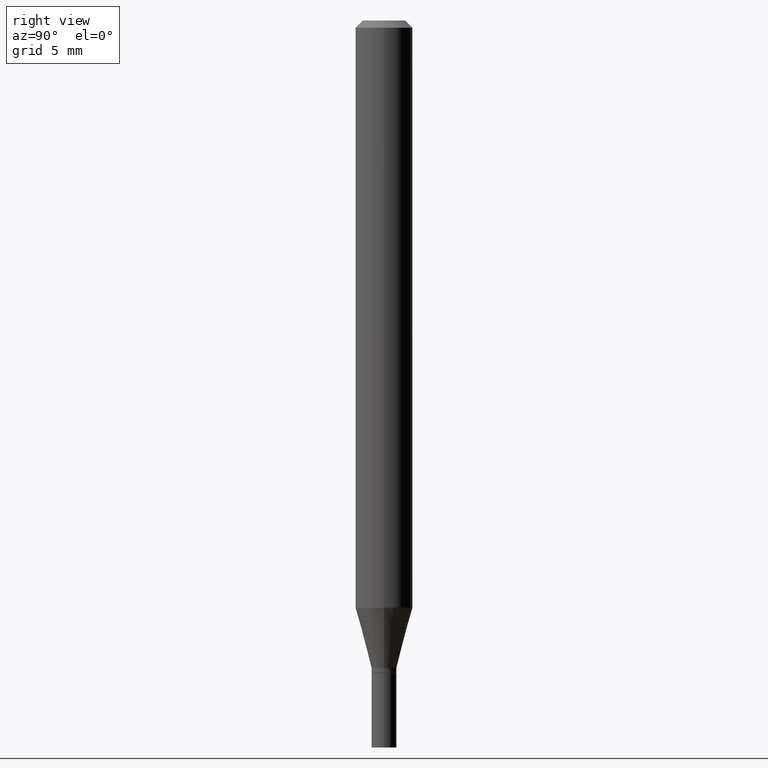
[diagram: clean part render]
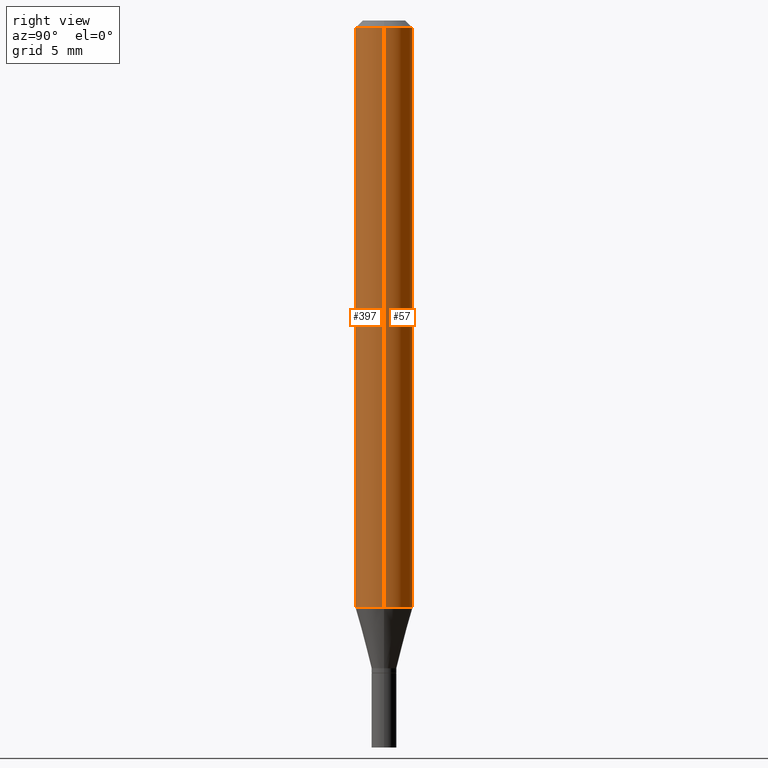
[diagram: same view with one multi-face feature highlighted, each face labeled with its STEP entity id]
A machine part, right view. The highlighted faces form ONE feature: a constant-radius fillet chain: 2 tangent blend faces with common blend radius 1.4999 mm. The faces share edges in the B-rep.
Their STEP definitions:
[1] entity #57 (Cylinder):
#26 = EDGE_CURVE ( 'NONE', #319, #460, #316, .T. ) ;
#40 = VERTEX_POINT ( 'NONE', #153 ) ;
#47 = ORIENTED_EDGE ( 'NONE', *, *, #73, .T. ) ;
#57 = ADVANCED_FACE ( 'NONE', ( #429 ), #254, .T. ) ;
#62 = CARTESIAN_POINT ( 'NONE',  ( -0.05904999999999999832, -1.721859827584131788E-15, -0.01499999999999999944 ) ) ;
#73 = EDGE_CURVE ( 'NONE', #460, #84, #466, .T. ) ;
#81 = DIRECTION ( 'NONE',  ( -2.445468806185136597E-29, 3.491481338843145583E-15, 1.000000000000000000 ) ) ;
#84 = VERTEX_POINT ( 'NONE', #62 ) ;
#95 = DIRECTION ( 'NONE',  ( 1.000000000000000000, -6.982962677686266711E-15, 0.000000000000000000 ) ) ;
#116 = CARTESIAN_POINT ( 'NONE',  ( -0.05904999999999999832, -3.810922920551955991E-15, -1.211662900486820904 ) ) ;
#121 = CARTESIAN_POINT ( 'NONE',  ( 2.963083826752325828E-29, -4.230498406018294695E-15, -1.211662900486820904 ) ) ;
#126 = VECTOR ( 'NONE', #321, 39.37007874015748143 ) ;
#131 = DIRECTION ( 'NONE',  ( -2.445468806185136597E-29, 3.491481338843145583E-15, 1.000000000000000000 ) ) ;
#153 = CARTESIAN_POINT ( 'NONE',  ( 0.05904999999999999832, -4.647161662000212105E-16, -0.01499999999999999944 ) ) ;
#165 = CARTESIAN_POINT ( 'NONE',  ( -0.05904999999999999832, 4.195754854663391478E-16, -2.904631170795521892E-30 ) ) ;
#179 = AXIS2_PLACEMENT_3D ( 'NONE', #121, #224, #297 ) ;
#220 = ORIENTED_EDGE ( 'NONE', *, *, #246, .F. ) ;
#224 = DIRECTION ( 'NONE',  ( -2.445468806185136597E-29, 3.491481338843145583E-15, 1.000000000000000000 ) ) ;
#225 = DIRECTION ( 'NONE',  ( 1.000000000000000000, -6.982962677686266711E-15, 4.876176775795936353E-29 ) ) ;
#235 = AXIS2_PLACEMENT_3D ( 'NONE', #294, #81, #225 ) ;
#246 = EDGE_CURVE ( 'NONE', #40, #84, #295, .T. ) ;
#254 = CYLINDRICAL_SURFACE ( 'NONE', #235, 0.05904999999999999832 ) ;
#291 = ORIENTED_EDGE ( 'NONE', *, *, #26, .T. ) ;
#294 = CARTESIAN_POINT ( 'NONE',  ( 0.000000000000000000, 0.000000000000000000, 0.000000000000000000 ) ) ;
#295 = CIRCLE ( 'NONE', #417, 0.05904999999999999832 ) ;
#297 = DIRECTION ( 'NONE',  ( 1.000000000000000000, -6.982962677686273021E-15, 0.000000000000000000 ) ) ;
#303 = DIRECTION ( 'NONE',  ( -2.445468806185136877E-29, 3.491481338843145188E-15, 1.000000000000000000 ) ) ;
#316 = CIRCLE ( 'NONE', #179, 0.05904999999999999832 ) ;
#319 = VERTEX_POINT ( 'NONE', #385 ) ;
#321 = DIRECTION ( 'NONE',  ( -2.445468806185136877E-29, 3.491481338843145188E-15, 1.000000000000000000 ) ) ;
#323 = LINE ( 'NONE', #422, #126 ) ;
#385 = CARTESIAN_POINT ( 'NONE',  ( 0.05904999999999999832, -4.642842352135668037E-15, -1.211662900486820904 ) ) ;
#398 = ORIENTED_EDGE ( 'NONE', *, *, #406, .F. ) ;
#406 = EDGE_CURVE ( 'NONE', #319, #40, #323, .T. ) ;
#412 = CARTESIAN_POINT ( 'NONE',  ( 3.668203209277705088E-31, -5.237222008264718399E-17, -0.01499999999999999944 ) ) ;
#417 = AXIS2_PLACEMENT_3D ( 'NONE', #412, #131, #95 ) ;
#422 = CARTESIAN_POINT ( 'NONE',  ( 0.05904999999999999832, -4.123439461173740327E-16, 2.879382386107500220E-30 ) ) ;
#429 = FACE_OUTER_BOUND ( 'NONE', #436, .T. ) ;
#436 = EDGE_LOOP ( 'NONE', ( #291, #47, #220, #398 ) ) ;
#446 = VECTOR ( 'NONE', #303, 39.37007874015748143 ) ;
#460 = VERTEX_POINT ( 'NONE', #116 ) ;
#466 = LINE ( 'NONE', #165, #446 ) ;
[2] entity #397 (Cylinder):
#7 = CIRCLE ( 'NONE', #172, 0.05904999999999999832 ) ;
#34 = CARTESIAN_POINT ( 'NONE',  ( 0.000000000000000000, 0.000000000000000000, 0.000000000000000000 ) ) ;
#35 = CIRCLE ( 'NONE', #214, 0.05904999999999999832 ) ;
#40 = VERTEX_POINT ( 'NONE', #153 ) ;
#53 = EDGE_CURVE ( 'NONE', #84, #40, #7, .T. ) ;
#62 = CARTESIAN_POINT ( 'NONE',  ( -0.05904999999999999832, -1.721859827584131788E-15, -0.01499999999999999944 ) ) ;
#73 = EDGE_CURVE ( 'NONE', #460, #84, #466, .T. ) ;
#84 = VERTEX_POINT ( 'NONE', #62 ) ;
#109 = DIRECTION ( 'NONE',  ( 1.000000000000000000, -6.982962677686266711E-15, 4.876176775795936353E-29 ) ) ;
#116 = CARTESIAN_POINT ( 'NONE',  ( -0.05904999999999999832, -3.810922920551955991E-15, -1.211662900486820904 ) ) ;
#126 = VECTOR ( 'NONE', #321, 39.37007874015748143 ) ;
#138 = CARTESIAN_POINT ( 'NONE',  ( 2.963083826752325828E-29, -4.230498406018294695E-15, -1.211662900486820904 ) ) ;
#146 = ORIENTED_EDGE ( 'NONE', *, *, #406, .T. ) ;
#153 = CARTESIAN_POINT ( 'NONE',  ( 0.05904999999999999832, -4.647161662000212105E-16, -0.01499999999999999944 ) ) ;
#155 = EDGE_LOOP ( 'NONE', ( #186, #243, #146, #201 ) ) ;
#165 = CARTESIAN_POINT ( 'NONE',  ( -0.05904999999999999832, 4.195754854663391478E-16, -2.904631170795521892E-30 ) ) ;
#172 = AXIS2_PLACEMENT_3D ( 'NONE', #228, #290, #327 ) ;
#181 = DIRECTION ( 'NONE',  ( -2.445468806185136597E-29, 3.491481338843145583E-15, 1.000000000000000000 ) ) ;
#186 = ORIENTED_EDGE ( 'NONE', *, *, #73, .F. ) ;
#201 = ORIENTED_EDGE ( 'NONE', *, *, #53, .F. ) ;
#205 = DIRECTION ( 'NONE',  ( 1.000000000000000000, -6.982962677686273021E-15, 0.000000000000000000 ) ) ;
#213 = FACE_OUTER_BOUND ( 'NONE', #155, .T. ) ;
#214 = AXIS2_PLACEMENT_3D ( 'NONE', #138, #462, #205 ) ;
#228 = CARTESIAN_POINT ( 'NONE',  ( 3.668203209277705088E-31, -5.237222008264718399E-17, -0.01499999999999999944 ) ) ;
#243 = ORIENTED_EDGE ( 'NONE', *, *, #309, .T. ) ;
#290 = DIRECTION ( 'NONE',  ( -2.445468806185136597E-29, 3.491481338843145583E-15, 1.000000000000000000 ) ) ;
#303 = DIRECTION ( 'NONE',  ( -2.445468806185136877E-29, 3.491481338843145188E-15, 1.000000000000000000 ) ) ;
#309 = EDGE_CURVE ( 'NONE', #460, #319, #35, .T. ) ;
#319 = VERTEX_POINT ( 'NONE', #385 ) ;
#321 = DIRECTION ( 'NONE',  ( -2.445468806185136877E-29, 3.491481338843145188E-15, 1.000000000000000000 ) ) ;
#323 = LINE ( 'NONE', #422, #126 ) ;
#327 = DIRECTION ( 'NONE',  ( 1.000000000000000000, -6.982962677686266711E-15, 0.000000000000000000 ) ) ;
#355 = CYLINDRICAL_SURFACE ( 'NONE', #396, 0.05904999999999999832 ) ;
#385 = CARTESIAN_POINT ( 'NONE',  ( 0.05904999999999999832, -4.642842352135668037E-15, -1.211662900486820904 ) ) ;
#396 = AXIS2_PLACEMENT_3D ( 'NONE', #34, #181, #109 ) ;
#397 = ADVANCED_FACE ( 'NONE', ( #213 ), #355, .T. ) ;
#406 = EDGE_CURVE ( 'NONE', #319, #40, #323, .T. ) ;
#422 = CARTESIAN_POINT ( 'NONE',  ( 0.05904999999999999832, -4.123439461173740327E-16, 2.879382386107500220E-30 ) ) ;
#446 = VECTOR ( 'NONE', #303, 39.37007874015748143 ) ;
#460 = VERTEX_POINT ( 'NONE', #116 ) ;
#462 = DIRECTION ( 'NONE',  ( -2.445468806185136597E-29, 3.491481338843145583E-15, 1.000000000000000000 ) ) ;
#466 = LINE ( 'NONE', #165, #446 ) ;